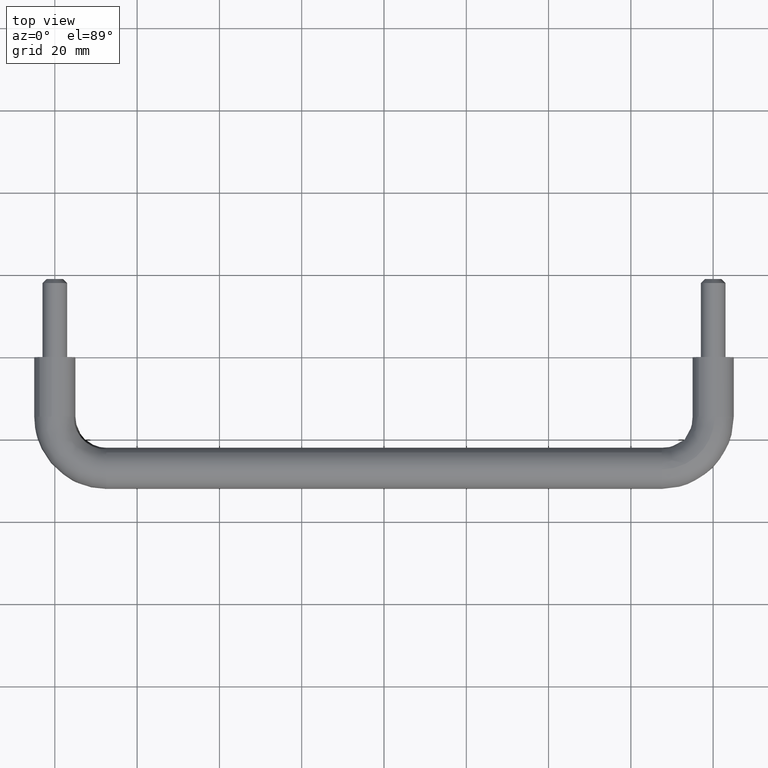
[diagram: clean part render]
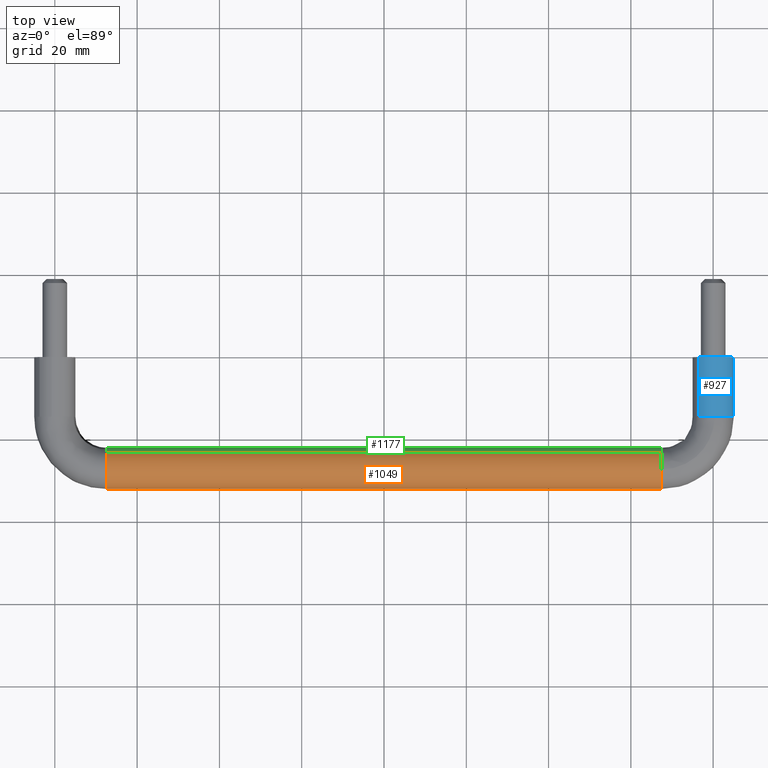
[diagram: same view with three faces highlighted in distinct colors, each labeled with its STEP entity id]
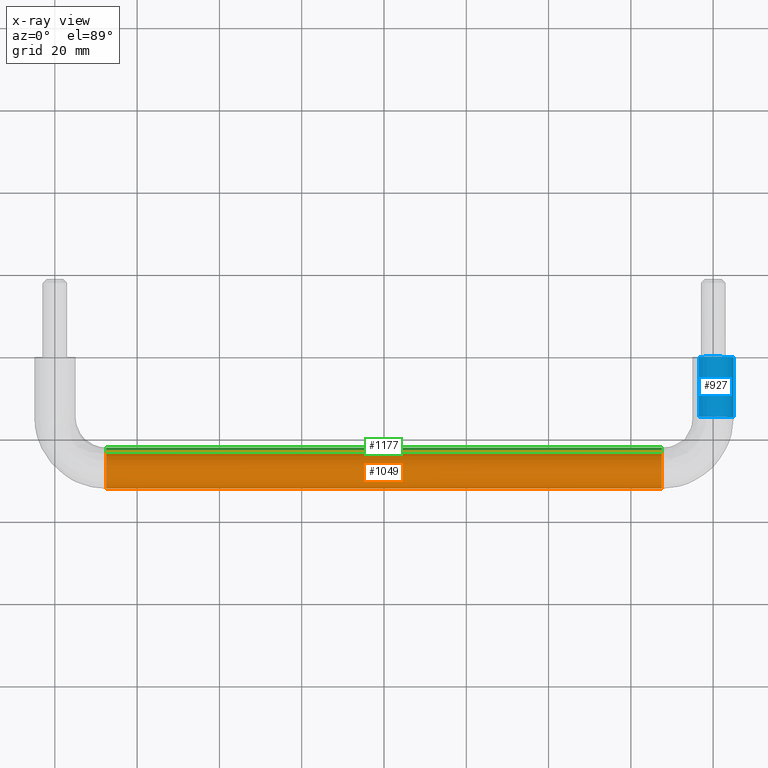
[diagram: x-ray of the same camera — body ghosted, the three highlighted faces saturated]
A machine part, top view with three faces highlighted in distinct colors.
The next image is the same camera in x-ray (body ghosted, the three faces saturated) — at least one of them is partly hidden behind the body in this view.
Their STEP definitions:

[orange] entity #1049 — the highlighted face is a freeform B-spline surface patch.
#928=CARTESIAN_POINT('',(9.124999999932095,-23.134301527502707,3.172047033751501));
#929=CARTESIAN_POINT('',(9.124999999932093,-23.158329223448398,3.200458507274524));
#930=CARTESIAN_POINT('',(9.124999999932092,-23.274626083842424,3.337973364186448));
#931=CARTESIAN_POINT('',(9.124999999932092,-23.373128144938558,3.441772878468769));
#932=CARTESIAN_POINT('',(9.124999999932092,-26.814901023407334,7.068644733530205));
#933=CARTESIAN_POINT('',(9.124999999932092,-30.441772878468768,3.626871855061437));
#934=CARTESIAN_POINT('',(9.124999999932092,-34.068644733530206,0.185098976592668));
#935=CARTESIAN_POINT('',(9.124999999932095,-30.602122203160214,-3.467853569749915));
#936=CARTESIAN_POINT('',(9.124999999932088,-30.577519551696881,-3.493779354891164));
#937=CARTESIAN_POINT('',(150.959375002785690,-23.134301527502696,3.172047033751501));
#938=CARTESIAN_POINT('',(150.959375002785720,-23.158329223448398,3.200458507274524));
#939=CARTESIAN_POINT('',(150.959375002785720,-23.274626083842413,3.337973364186448));
#940=CARTESIAN_POINT('',(150.959375002785690,-23.373128144938541,3.441772878468769));
#941=CARTESIAN_POINT('',(150.959375002785750,-26.814901023407320,7.068644733530205));
#942=CARTESIAN_POINT('',(150.959375002785690,-30.441772878468750,3.626871855061437));
#943=CARTESIAN_POINT('',(150.959375002785750,-34.068644733530192,0.185098976592668));
#944=CARTESIAN_POINT('',(150.959375002785780,-30.602122203160196,-3.467853569749915));
#945=CARTESIAN_POINT('',(150.959375002785690,-30.577519551696863,-3.493779354891164));
#953=(BOUNDED_SURFACE()B_SPLINE_SURFACE(2,1,((#928,#937),(#929,#938),(#930,#939),(#931,#940),(#932,#941),(#933,#942),(#934,#943),(#935,#944),(#936,#945)),.UNSPECIFIED.,.F.,.F.,.U.)B_SPLINE_SURFACE_WITH_KNOTS((3,1,2,2,1,3),(2,2),(0.0,0.084508292774070,0.415879142672547,8.700150390134446,16.984421637596348,17.068920665394639),(0.0,141.834375002853590),.UNSPECIFIED.)GEOMETRIC_REPRESENTATION_ITEM()RATIONAL_B_SPLINE_SURFACE(((0.972008213201519,0.972008213201519),(0.974757006998323,0.974757006998323),(0.988284271247462,0.988284271247462),(1.0,1.0),(0.707106781186548,0.707106781186548),(1.0,1.0),(0.707106781186548,0.707106781186548),(1.002987491777992,1.002987491777992),(1.005974983555985,1.005974983555985)))REPRESENTATION_ITEM('')SURFACE());
#954=CARTESIAN_POINT('',(147.500000000000000,-23.182221785298410,3.228710191911005));
#955=VERTEX_POINT('',#954);
#956=CARTESIAN_POINT('',(147.500000002716090,-27.348666267987259,4.987828368495434));
#957=VERTEX_POINT('',#956);
#958=CARTESIAN_POINT('',(147.500000000000030,-23.182221785298410,3.228710191911005));
#959=CARTESIAN_POINT('',(147.500000000000030,-24.680208607630032,5.0));
#960=CARTESIAN_POINT('',(147.500000000000000,-27.0,5.0));
#961=CARTESIAN_POINT('',(147.500000000000060,-27.174545589520640,5.0));
#962=CARTESIAN_POINT('',(147.500000002716060,-27.348666267987262,4.987828368495434));
#970=(BOUNDED_CURVE()B_SPLINE_CURVE(2,(#958,#959,#960,#961,#962),.UNSPECIFIED.,.F.,.U.)B_SPLINE_CURVE_WITH_KNOTS((3,2,3),(0.612408089723808,0.750000000000000,0.762166314162064),.UNSPECIFIED.)CURVE()GEOMETRIC_REPRESENTATION_ITEM()RATIONAL_B_SPLINE_CURVE((0.855039471779534,0.838801050066057,1.0,0.985746276335909,0.972879874912431))REPRESENTATION_ITEM(''));
#971=EDGE_CURVE('',#955,#957,#970,.T.);
#972=ORIENTED_EDGE('',*,*,#971,.F.);
#973=CARTESIAN_POINT('',(12.500000000006970,-23.182216886848611,3.228704399729181));
#974=VERTEX_POINT('',#973);
#975=CARTESIAN_POINT('',(12.500000000006970,-23.182216886848611,3.228704399729181));
#976=CARTESIAN_POINT('',(147.500000000000000,-23.182221785298410,3.228710191911005));
#977=QUASI_UNIFORM_CURVE('',1,(#975,#976),.UNSPECIFIED.,.F.,.U.);
#978=EDGE_CURVE('',#974,#955,#977,.T.);
#979=ORIENTED_EDGE('',*,*,#978,.F.);
#980=CARTESIAN_POINT('',(12.500000000000000,-32.0,0.0));
#981=VERTEX_POINT('',#980);
#982=CARTESIAN_POINT('',(12.500000000006965,-23.182216886848611,3.228704399729181));
#983=CARTESIAN_POINT('',(12.499999999999998,-24.680203998306265,4.999999999999999));
#984=CARTESIAN_POINT('',(12.500000000000000,-27.0,5.0));
#985=CARTESIAN_POINT('',(12.500000000000000,-31.999999999999996,5.000000000000001));
#986=CARTESIAN_POINT('',(12.500000000000000,-32.0,0.0));
#994=(BOUNDED_CURVE()B_SPLINE_CURVE(2,(#982,#983,#984,#985,#986),.UNSPECIFIED.,.F.,.U.)B_SPLINE_CURVE_WITH_KNOTS((3,2,3),(0.612407860404824,0.750000000000000,1.0),.UNSPECIFIED.)CURVE()GEOMETRIC_REPRESENTATION_ITEM()RATIONAL_B_SPLINE_CURVE((0.855039525907895,0.838800781402156,1.0,0.707106781186548,1.0))REPRESENTATION_ITEM(''));
#995=EDGE_CURVE('',#974,#981,#994,.T.);
#996=ORIENTED_EDGE('',*,*,#995,.T.);
#997=CARTESIAN_POINT('',(12.500000000000000,-30.626872194420599,-3.441772520858758));
#998=VERTEX_POINT('',#997);
#999=CARTESIAN_POINT('',(12.500000000000000,-32.0,0.0));
#1000=CARTESIAN_POINT('',(12.499999999999996,-32.000000000000007,-1.994797158397781));
#1001=CARTESIAN_POINT('',(12.500000000000005,-30.626872194420596,-3.441772520858758));
#1009=(BOUNDED_CURVE()B_SPLINE_CURVE(2,(#999,#1000,#1001),.UNSPECIFIED.,.F.,.U.)B_SPLINE_CURVE_WITH_KNOTS((3,3),(0.0,0.121049496898760),.UNSPECIFIED.)CURVE()GEOMETRIC_REPRESENTATION_ITEM()RATIONAL_B_SPLINE_CURVE((1.0,0.858181692870293,0.853699663573264))REPRESENTATION_ITEM(''));
#1010=EDGE_CURVE('',#981,#998,#1009,.T.);
#1011=ORIENTED_EDGE('',*,*,#1010,.T.);
#1012=CARTESIAN_POINT('',(147.500000000000000,-30.626872198659441,-3.441772516391943));
#1013=VERTEX_POINT('',#1012);
#1014=CARTESIAN_POINT('',(12.500000000000000,-30.626872194420599,-3.441772520858758));
#1015=CARTESIAN_POINT('',(147.500000000000000,-30.626872198659441,-3.441772516391943));
#1016=QUASI_UNIFORM_CURVE('',1,(#1014,#1015),.UNSPECIFIED.,.F.,.U.);
#1017=EDGE_CURVE('',#998,#1013,#1016,.T.);
#1018=ORIENTED_EDGE('',*,*,#1017,.T.);
#1019=CARTESIAN_POINT('',(147.500000000000000,-32.0,0.0));
#1020=VERTEX_POINT('',#1019);
#1021=CARTESIAN_POINT('',(147.500000000000000,-32.0,0.0));
#1022=CARTESIAN_POINT('',(147.500000000000000,-32.0,-1.994797151259687));
#1023=CARTESIAN_POINT('',(147.499999999999970,-30.626872198659445,-3.441772516391943));
#1031=(BOUNDED_CURVE()B_SPLINE_CURVE(2,(#1021,#1022,#1023),.UNSPECIFIED.,.F.,.U.)B_SPLINE_CURVE_WITH_KNOTS((3,3),(0.0,0.121049496527031),.UNSPECIFIED.)CURVE()GEOMETRIC_REPRESENTATION_ITEM()RATIONAL_B_SPLINE_CURVE((1.0,0.858181693305800,0.853699663600792))REPRESENTATION_ITEM(''));
#1032=EDGE_CURVE('',#1020,#1013,#1031,.T.);
#1033=ORIENTED_EDGE('',*,*,#1032,.F.);
#1034=CARTESIAN_POINT('',(147.500000002716120,-27.348666267987262,4.987828368495434));
#1035=CARTESIAN_POINT('',(147.499999999999970,-32.000000000000007,4.662684217384964));
#1036=CARTESIAN_POINT('',(147.500000000000000,-32.0,0.0));
#1044=(BOUNDED_CURVE()B_SPLINE_CURVE(2,(#1034,#1035,#1036),.UNSPECIFIED.,.F.,.U.)B_SPLINE_CURVE_WITH_KNOTS((3,3),(0.762166314162063,1.0),.UNSPECIFIED.)CURVE()GEOMETRIC_REPRESENTATION_ITEM()RATIONAL_B_SPLINE_CURVE((0.972879874912433,0.721360504850637,1.0))REPRESENTATION_ITEM(''));
#1045=EDGE_CURVE('',#957,#1020,#1044,.T.);
#1046=ORIENTED_EDGE('',*,*,#1045,.F.);
#1047=EDGE_LOOP('',(#972,#979,#996,#1011,#1018,#1033,#1046));
#1048=FACE_OUTER_BOUND('',#1047,.T.);
#1049=ADVANCED_FACE('',(#1048),#953,.T.);

[blue] entity #927 — the highlighted face is a freeform B-spline surface patch.
#730=CARTESIAN_POINT('',(163.294846744962510,-14.499999999999950,-3.760848963626144));
#731=VERTEX_POINT('',#730);
#764=CARTESIAN_POINT('',(156.495454233629910,-14.500000000000000,3.566252791294635));
#765=VERTEX_POINT('',#764);
#779=CARTESIAN_POINT('',(156.495454226941400,1.950523E-014,3.566252784721851));
#780=VERTEX_POINT('',#779);
#781=CARTESIAN_POINT('',(156.495454233629910,-14.500000000000000,3.566252791294635));
#782=CARTESIAN_POINT('',(156.495454226941400,1.950523E-014,3.566252784721851));
#783=QUASI_UNIFORM_CURVE('',1,(#781,#782),.UNSPECIFIED.,.F.,.U.);
#784=EDGE_CURVE('',#765,#780,#783,.T.);
#801=CARTESIAN_POINT('',(163.294846758402000,1.749138E-014,-3.760848951851971));
#802=VERTEX_POINT('',#801);
#818=CARTESIAN_POINT('',(163.294846744962510,-14.499999999999950,-3.760848963626144));
#819=CARTESIAN_POINT('',(163.294846758402000,1.749138E-014,-3.760848951851971));
#820=QUASI_UNIFORM_CURVE('',1,(#818,#819),.UNSPECIFIED.,.F.,.U.);
#821=EDGE_CURVE('',#731,#802,#820,.T.);
#826=CARTESIAN_POINT('',(156.495453678500810,-14.862500001555400,3.566252245770907));
#827=CARTESIAN_POINT('',(160.061705924271680,-14.862500001555404,7.070798567270160));
#828=CARTESIAN_POINT('',(163.566252245770900,-14.862500001555400,3.504546321499253));
#829=CARTESIAN_POINT('',(167.070798567270200,-14.862500001555404,-0.061705924271653));
#830=CARTESIAN_POINT('',(163.504546321499300,-14.862500001555400,-3.566252245770907));
#831=CARTESIAN_POINT('',(163.402481714390890,-14.862500001555400,-3.666550855837281));
#832=CARTESIAN_POINT('',(163.294847860799680,-14.862500001555395,-3.760847986050986));
#833=CARTESIAN_POINT('',(156.495453678500810,0.371562500038906,3.566252245770907));
#834=CARTESIAN_POINT('',(160.061705924271680,0.371562500038906,7.070798567270160));
#835=CARTESIAN_POINT('',(163.566252245770900,0.371562500038905,3.504546321499253));
#836=CARTESIAN_POINT('',(167.070798567270200,0.371562500038905,-0.061705924271653));
#837=CARTESIAN_POINT('',(163.504546321499300,0.371562500038905,-3.566252245770907));
#838=CARTESIAN_POINT('',(163.402481714390890,0.371562500038905,-3.666550855837281));
#839=CARTESIAN_POINT('',(163.294847860799680,0.371562500038905,-3.760847986050986));
#847=(BOUNDED_SURFACE()B_SPLINE_SURFACE(2,1,((#826,#833),(#827,#834),(#828,#835),(#829,#836),(#830,#837),(#831,#838),(#832,#839)),.UNSPECIFIED.,.F.,.F.,.U.)B_SPLINE_SURFACE_WITH_KNOTS((3,2,2,3),(2,2),(0.0,8.284271247461916,16.568542494923829,16.899913344822309),(0.0,15.234062501594300),.UNSPECIFIED.)GEOMETRIC_REPRESENTATION_ITEM()RATIONAL_B_SPLINE_SURFACE(((1.0,1.0),(0.707106781186548,0.707106781186548),(1.0,1.0),(0.707106781186548,0.707106781186548),(1.0,1.0),(0.988284271247462,0.988284271247462),(0.977505800795127,0.977505800795127)))REPRESENTATION_ITEM('')SURFACE());
#848=CARTESIAN_POINT('',(165.0,-14.500000000000000,0.0));
#849=VERTEX_POINT('',#848);
#850=CARTESIAN_POINT('',(165.0,-14.500000000000000,0.0));
#851=CARTESIAN_POINT('',(165.0,-14.500000000000004,-2.266979173491211));
#852=CARTESIAN_POINT('',(163.294846744962570,-14.500000000000004,-3.760848963626326));
#860=(BOUNDED_CURVE()B_SPLINE_CURVE(2,(#850,#851,#852),.UNSPECIFIED.,.F.,.U.)B_SPLINE_CURVE_WITH_KNOTS((3,3),(0.0,0.134954764893290),.UNSPECIFIED.)CURVE()GEOMETRIC_REPRESENTATION_ITEM()RATIONAL_B_SPLINE_CURVE((1.0,0.841890658064766,0.854482188675951))REPRESENTATION_ITEM(''));
#861=EDGE_CURVE('',#849,#731,#860,.T.);
#862=ORIENTED_EDGE('',*,*,#861,.T.);
#863=ORIENTED_EDGE('',*,*,#821,.T.);
#864=CARTESIAN_POINT('',(165.0,1.908196E-014,0.0));
#865=VERTEX_POINT('',#864);
#866=CARTESIAN_POINT('',(165.0,1.908196E-014,0.0));
#867=CARTESIAN_POINT('',(164.999999999999940,1.908196E-014,-2.266979162720917));
#868=CARTESIAN_POINT('',(163.294846758402120,1.908196E-014,-3.760848951852134));
#876=(BOUNDED_CURVE()B_SPLINE_CURVE(2,(#866,#867,#868),.UNSPECIFIED.,.F.,.U.)B_SPLINE_CURVE_WITH_KNOTS((3,3),(0.0,0.134954764353501),.UNSPECIFIED.)CURVE()GEOMETRIC_REPRESENTATION_ITEM()RATIONAL_B_SPLINE_CURVE((1.0,0.841890658697168,0.854482188575224))REPRESENTATION_ITEM(''));
#877=EDGE_CURVE('',#865,#802,#876,.T.);
#878=ORIENTED_EDGE('',*,*,#877,.F.);
#879=CARTESIAN_POINT('',(156.495454226941430,1.950523E-014,3.566252784721851));
#880=CARTESIAN_POINT('',(157.954446890489920,1.908196E-014,5.000000000000001));
#881=CARTESIAN_POINT('',(160.0,1.908196E-014,5.0));
#882=CARTESIAN_POINT('',(165.000000000000090,1.908196E-014,5.000000000000001));
#883=CARTESIAN_POINT('',(165.0,1.908196E-014,0.0));
#891=(BOUNDED_CURVE()B_SPLINE_CURVE(2,(#879,#880,#881,#882,#883),.UNSPECIFIED.,.F.,.U.)B_SPLINE_CURVE_WITH_KNOTS((3,2,3),(0.626316804001080,0.750000000000000,1.0),.UNSPECIFIED.)CURVE()GEOMETRIC_REPRESENTATION_ITEM()RATIONAL_B_SPLINE_CURVE((0.853569642397052,0.855096122442965,1.0,0.707106781186548,1.0))REPRESENTATION_ITEM(''));
#892=EDGE_CURVE('',#780,#865,#891,.T.);
#893=ORIENTED_EDGE('',*,*,#892,.F.);
#894=ORIENTED_EDGE('',*,*,#784,.F.);
#895=CARTESIAN_POINT('',(160.348666263995000,-14.500000001517460,4.987828368774506));
#896=VERTEX_POINT('',#895);
#897=CARTESIAN_POINT('',(156.495454233629940,-14.500000000000000,3.566252791294634));
#898=CARTESIAN_POINT('',(157.954446901437000,-14.500000000000000,5.0));
#899=CARTESIAN_POINT('',(160.0,-14.500000000000000,5.0));
#900=CARTESIAN_POINT('',(160.174545585513780,-14.500000000000002,5.0));
#901=CARTESIAN_POINT('',(160.348666263994970,-14.500000001517460,4.987828368774506));
#909=(BOUNDED_CURVE()B_SPLINE_CURVE(2,(#897,#898,#899,#900,#901),.UNSPECIFIED.,.F.,.U.)B_SPLINE_CURVE_WITH_KNOTS((3,2,3),(0.626316804567074,0.750000000000000,0.762166313886754),.UNSPECIFIED.)CURVE()GEOMETRIC_REPRESENTATION_ITEM()RATIONAL_B_SPLINE_CURVE((0.853569642411023,0.855096123106068,1.0,0.985746276658456,0.972879875494737))REPRESENTATION_ITEM(''));
#910=EDGE_CURVE('',#765,#896,#909,.T.);
#911=ORIENTED_EDGE('',*,*,#910,.T.);
#912=CARTESIAN_POINT('',(160.348666263994970,-14.500000001517463,4.987828368774506));
#913=CARTESIAN_POINT('',(164.999999999999940,-14.500000000000002,4.662684224867201));
#914=CARTESIAN_POINT('',(165.0,-14.500000000000000,0.0));
#922=(BOUNDED_CURVE()B_SPLINE_CURVE(2,(#912,#913,#914),.UNSPECIFIED.,.F.,.U.)B_SPLINE_CURVE_WITH_KNOTS((3,3),(0.762166313886754,1.0),.UNSPECIFIED.)CURVE()GEOMETRIC_REPRESENTATION_ITEM()RATIONAL_B_SPLINE_CURVE((0.972879875494736,0.721360504528092,1.0))REPRESENTATION_ITEM(''));
#923=EDGE_CURVE('',#896,#849,#922,.T.);
#924=ORIENTED_EDGE('',*,*,#923,.T.);
#925=EDGE_LOOP('',(#862,#863,#878,#893,#894,#911,#924));
#926=FACE_OUTER_BOUND('',#925,.T.);
#927=ADVANCED_FACE('',(#926),#847,.T.);

[green] entity #1177 — the highlighted face is a freeform B-spline surface patch.
#954=CARTESIAN_POINT('',(147.500000000000000,-23.182221785298410,3.228710191911005));
#955=VERTEX_POINT('',#954);
#973=CARTESIAN_POINT('',(12.500000000006970,-23.182216886848611,3.228704399729181));
#974=VERTEX_POINT('',#973);
#975=CARTESIAN_POINT('',(12.500000000006970,-23.182216886848611,3.228704399729181));
#976=CARTESIAN_POINT('',(147.500000000000000,-23.182221785298410,3.228710191911005));
#977=QUASI_UNIFORM_CURVE('',1,(#975,#976),.UNSPECIFIED.,.F.,.U.);
#978=EDGE_CURVE('',#974,#955,#977,.T.);
#997=CARTESIAN_POINT('',(12.500000000000000,-30.626872194420599,-3.441772520858758));
#998=VERTEX_POINT('',#997);
#1012=CARTESIAN_POINT('',(147.500000000000000,-30.626872198659441,-3.441772516391943));
#1013=VERTEX_POINT('',#1012);
#1014=CARTESIAN_POINT('',(12.500000000000000,-30.626872194420599,-3.441772520858758));
#1015=CARTESIAN_POINT('',(147.500000000000000,-30.626872198659441,-3.441772516391943));
#1016=QUASI_UNIFORM_CURVE('',1,(#1014,#1015),.UNSPECIFIED.,.F.,.U.);
#1017=EDGE_CURVE('',#998,#1013,#1016,.T.);
#1050=CARTESIAN_POINT('',(9.124999999932092,-30.626871855061442,-3.441772878468769));
#1051=CARTESIAN_POINT('',(9.124999999932092,-27.185098976592666,-7.068644733530205));
#1052=CARTESIAN_POINT('',(9.124999999932092,-23.558227121531232,-3.626871855061437));
#1053=CARTESIAN_POINT('',(9.124999999932092,-20.133178209124655,-0.376621797922258));
#1054=CARTESIAN_POINT('',(9.124999999932093,-23.182221785297678,3.228710191910127));
#1055=CARTESIAN_POINT('',(150.959375002785690,-30.626871855061420,-3.441772878468769));
#1056=CARTESIAN_POINT('',(150.959375002785750,-27.185098976592652,-7.068644733530205));
#1057=CARTESIAN_POINT('',(150.959375002785690,-23.558227121531210,-3.626871855061437));
#1058=CARTESIAN_POINT('',(150.959375002785720,-20.133178209124640,-0.376621797922258));
#1059=CARTESIAN_POINT('',(150.959375002785750,-23.182221785297671,3.228710191910127));
#1067=(BOUNDED_SURFACE()B_SPLINE_SURFACE(2,1,((#1050,#1055),(#1051,#1056),(#1052,#1057),(#1053,#1058),(#1054,#1059)),.UNSPECIFIED.,.F.,.F.,.U.)B_SPLINE_SURFACE_WITH_KNOTS((3,2,3),(2,2),(0.0,8.284271247461899,16.237171645025320),(0.0,141.834375002853590),.UNSPECIFIED.)GEOMETRIC_REPRESENTATION_ITEM()RATIONAL_B_SPLINE_SURFACE(((1.0,1.0),(0.707106781186548,0.707106781186548),(1.0,1.0),(0.718822509939086,0.718822509939086),(0.977505800795127,0.977505800795127)))REPRESENTATION_ITEM('')SURFACE());
#1068=CARTESIAN_POINT('',(147.500000000000000,-22.0,0.0));
#1069=VERTEX_POINT('',#1068);
#1070=CARTESIAN_POINT('',(147.500000000000000,-22.0,0.0));
#1071=CARTESIAN_POINT('',(147.499999999999970,-22.000000000000004,1.830795759032039));
#1072=CARTESIAN_POINT('',(147.500000000000030,-23.182221785298410,3.228710191911005));
#1080=(BOUNDED_CURVE()B_SPLINE_CURVE(2,(#1070,#1071,#1072),.UNSPECIFIED.,.F.,.U.)B_SPLINE_CURVE_WITH_KNOTS((3,3),(0.500000000000000,0.612408089723808),.UNSPECIFIED.)CURVE()GEOMETRIC_REPRESENTATION_ITEM()RATIONAL_B_SPLINE_CURVE((1.0,0.868305731120490,0.855039471779534))REPRESENTATION_ITEM(''));
#1081=EDGE_CURVE('',#1069,#955,#1080,.T.);
#1082=ORIENTED_EDGE('',*,*,#1081,.F.);
#1083=CARTESIAN_POINT('',(147.500000001367910,-26.937169798597431,-4.999605220994124));
#1084=VERTEX_POINT('',#1083);
#1085=CARTESIAN_POINT('',(147.500000001367990,-26.937169798597427,-4.999605220994124));
#1086=CARTESIAN_POINT('',(147.500000000000060,-22.000000000000004,-4.937559645613947));
#1087=CARTESIAN_POINT('',(147.500000000000000,-22.0,0.0));
#1095=(BOUNDED_CURVE()B_SPLINE_CURVE(2,(#1085,#1086,#1087),.UNSPECIFIED.,.F.,.U.)B_SPLINE_CURVE_WITH_KNOTS((3,3),(0.252215704217978,0.500000000000000),.UNSPECIFIED.)CURVE()GEOMETRIC_REPRESENTATION_ITEM()RATIONAL_B_SPLINE_CURVE((0.994854295322464,0.709702640147916,1.0))REPRESENTATION_ITEM(''));
#1096=EDGE_CURVE('',#1084,#1069,#1095,.T.);
#1097=ORIENTED_EDGE('',*,*,#1096,.F.);
#1098=CARTESIAN_POINT('',(147.499999999999970,-30.626872198659445,-3.441772516391943));
#1099=CARTESIAN_POINT('',(147.500000000000060,-29.148170121130040,-5.000000000000001));
#1100=CARTESIAN_POINT('',(147.500000000000000,-27.0,-5.0));
#1101=CARTESIAN_POINT('',(147.500000000000000,-26.968583658054509,-5.000000000000001));
#1102=CARTESIAN_POINT('',(147.500000001367910,-26.937169798597434,-4.999605220994124));
#1110=(BOUNDED_CURVE()B_SPLINE_CURVE(2,(#1098,#1099,#1100,#1101,#1102),.UNSPECIFIED.,.F.,.U.)B_SPLINE_CURVE_WITH_KNOTS((3,2,3),(0.121049496527031,0.250000000000000,0.252215704217978),.UNSPECIFIED.)CURVE()GEOMETRIC_REPRESENTATION_ITEM()RATIONAL_B_SPLINE_CURVE((0.853699663600792,0.848925087880748,1.0,0.997404141038632,0.994854295322463))REPRESENTATION_ITEM(''));
#1111=EDGE_CURVE('',#1013,#1084,#1110,.T.);
#1112=ORIENTED_EDGE('',*,*,#1111,.F.);
#1113=ORIENTED_EDGE('',*,*,#1017,.F.);
#1114=CARTESIAN_POINT('',(12.500000000970360,-25.191768631769509,-4.661576913336008));
#1115=VERTEX_POINT('',#1114);
#1116=CARTESIAN_POINT('',(12.500000000000005,-30.626872194420596,-3.441772520858758));
#1117=CARTESIAN_POINT('',(12.499999999999998,-29.148170113835427,-5.0));
#1118=CARTESIAN_POINT('',(12.500000000000000,-27.0,-5.0));
#1119=CARTESIAN_POINT('',(12.499999999999998,-26.064215197122177,-5.0));
#1120=CARTESIAN_POINT('',(12.500000000970362,-25.191768631769502,-4.661576913336008));
#1128=(BOUNDED_CURVE()B_SPLINE_CURVE(2,(#1116,#1117,#1118,#1119,#1120),.UNSPECIFIED.,.F.,.U.)B_SPLINE_CURVE_WITH_KNOTS((3,2,3),(0.121049496898760,0.250000000000000,0.311409344367956),.UNSPECIFIED.)CURVE()GEOMETRIC_REPRESENTATION_ITEM()RATIONAL_B_SPLINE_CURVE((0.853699663573264,0.848925088316254,1.0,0.928054477851383,0.891453974465620))REPRESENTATION_ITEM(''));
#1129=EDGE_CURVE('',#998,#1115,#1128,.T.);
#1130=ORIENTED_EDGE('',*,*,#1129,.T.);
#1131=CARTESIAN_POINT('',(12.500000000000000,-22.0,0.0));
#1132=VERTEX_POINT('',#1131);
#1133=CARTESIAN_POINT('',(12.500000000970362,-25.191768631769502,-4.661576913336008));
#1134=CARTESIAN_POINT('',(12.500000000000000,-22.000000000000007,-3.423485968655524));
#1135=CARTESIAN_POINT('',(12.500000000000000,-22.0,0.0));
#1143=(BOUNDED_CURVE()B_SPLINE_CURVE(2,(#1133,#1134,#1135),.UNSPECIFIED.,.F.,.U.)B_SPLINE_CURVE_WITH_KNOTS((3,3),(0.311409344367956,0.500000000000000),.UNSPECIFIED.)CURVE()GEOMETRIC_REPRESENTATION_ITEM()RATIONAL_B_SPLINE_CURVE((0.891453974465620,0.779052303335165,1.0))REPRESENTATION_ITEM(''));
#1144=EDGE_CURVE('',#1115,#1132,#1143,.T.);
#1145=ORIENTED_EDGE('',*,*,#1144,.T.);
#1146=CARTESIAN_POINT('',(12.500000000011530,-22.449470146599229,2.071877905019579));
#1147=VERTEX_POINT('',#1146);
#1148=CARTESIAN_POINT('',(12.500000000000000,-22.0,0.0));
#1149=CARTESIAN_POINT('',(12.499999999999998,-22.000000000000004,1.084692648932070));
#1150=CARTESIAN_POINT('',(12.500000000011529,-22.449470146599225,2.071877905019579));
#1158=(BOUNDED_CURVE()B_SPLINE_CURVE(2,(#1148,#1149,#1150),.UNSPECIFIED.,.F.,.U.)B_SPLINE_CURVE_WITH_KNOTS((3,3),(0.500000000000000,0.570375489961714),.UNSPECIFIED.)CURVE()GEOMETRIC_REPRESENTATION_ITEM()RATIONAL_B_SPLINE_CURVE((1.0,0.917549984878159,0.881519651448721))REPRESENTATION_ITEM(''));
#1159=EDGE_CURVE('',#1132,#1147,#1158,.T.);
#1160=ORIENTED_EDGE('',*,*,#1159,.T.);
#1161=CARTESIAN_POINT('',(12.500000000011521,-22.449470146599221,2.071877905019579));
#1162=CARTESIAN_POINT('',(12.500000000009051,-22.735884297693200,2.700938209100047));
#1163=CARTESIAN_POINT('',(12.500000000006965,-23.182216886848611,3.228704399729181));
#1171=(BOUNDED_CURVE()B_SPLINE_CURVE(2,(#1161,#1162,#1163),.UNSPECIFIED.,.F.,.U.)B_SPLINE_CURVE_WITH_KNOTS((3,3),(0.570375489961713,0.612407860404824),.UNSPECIFIED.)CURVE()GEOMETRIC_REPRESENTATION_ITEM()RATIONAL_B_SPLINE_CURVE((0.881519651448722,0.860000222984083,0.855039525907895))REPRESENTATION_ITEM(''));
#1172=EDGE_CURVE('',#1147,#974,#1171,.T.);
#1173=ORIENTED_EDGE('',*,*,#1172,.T.);
#1174=ORIENTED_EDGE('',*,*,#978,.T.);
#1175=EDGE_LOOP('',(#1082,#1097,#1112,#1113,#1130,#1145,#1160,#1173,#1174));
#1176=FACE_OUTER_BOUND('',#1175,.T.);
#1177=ADVANCED_FACE('',(#1176),#1067,.T.);